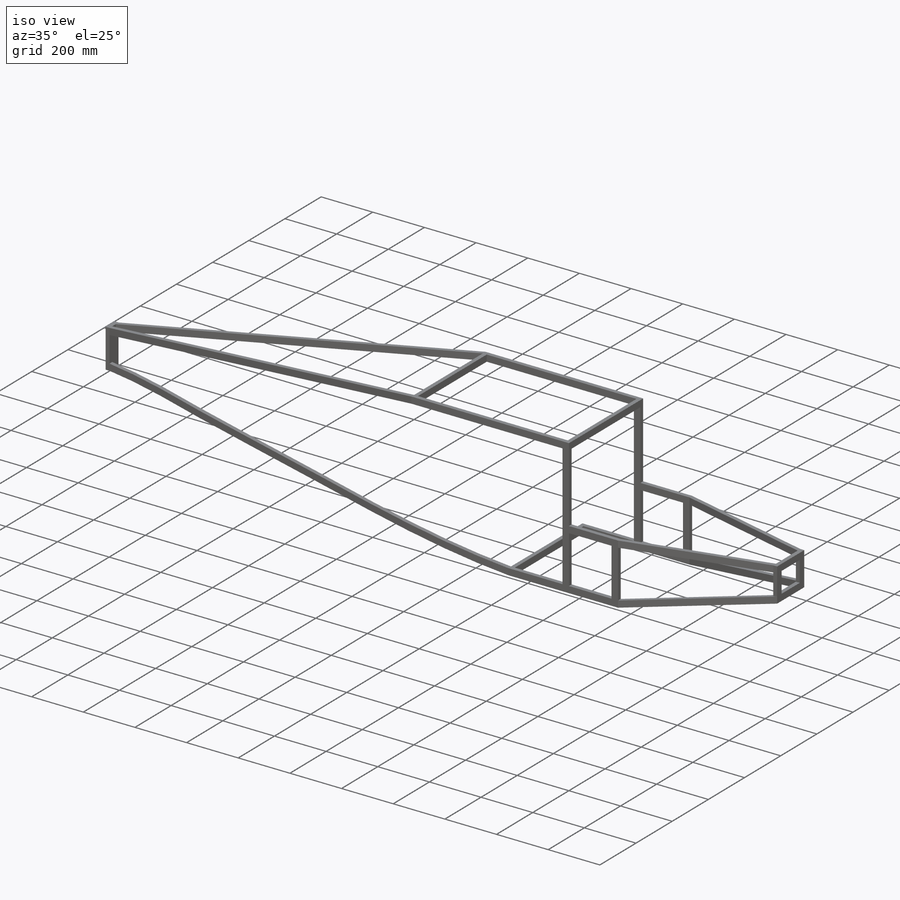
[diagram: iso view]
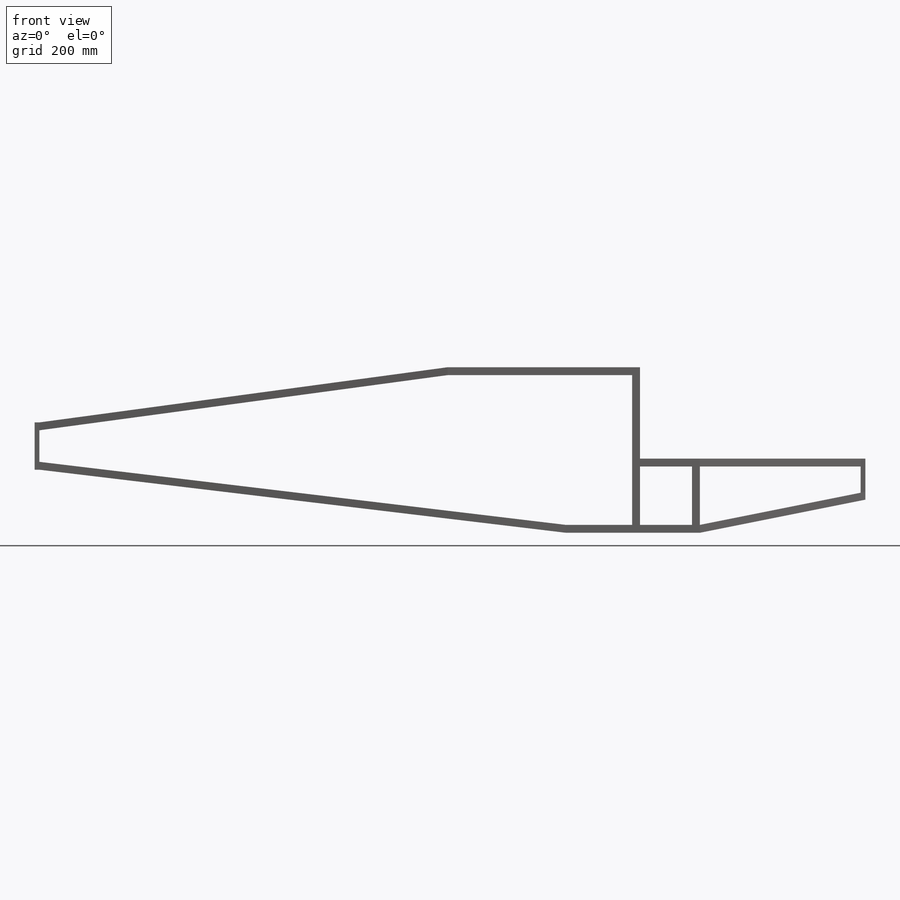
[diagram: front view]
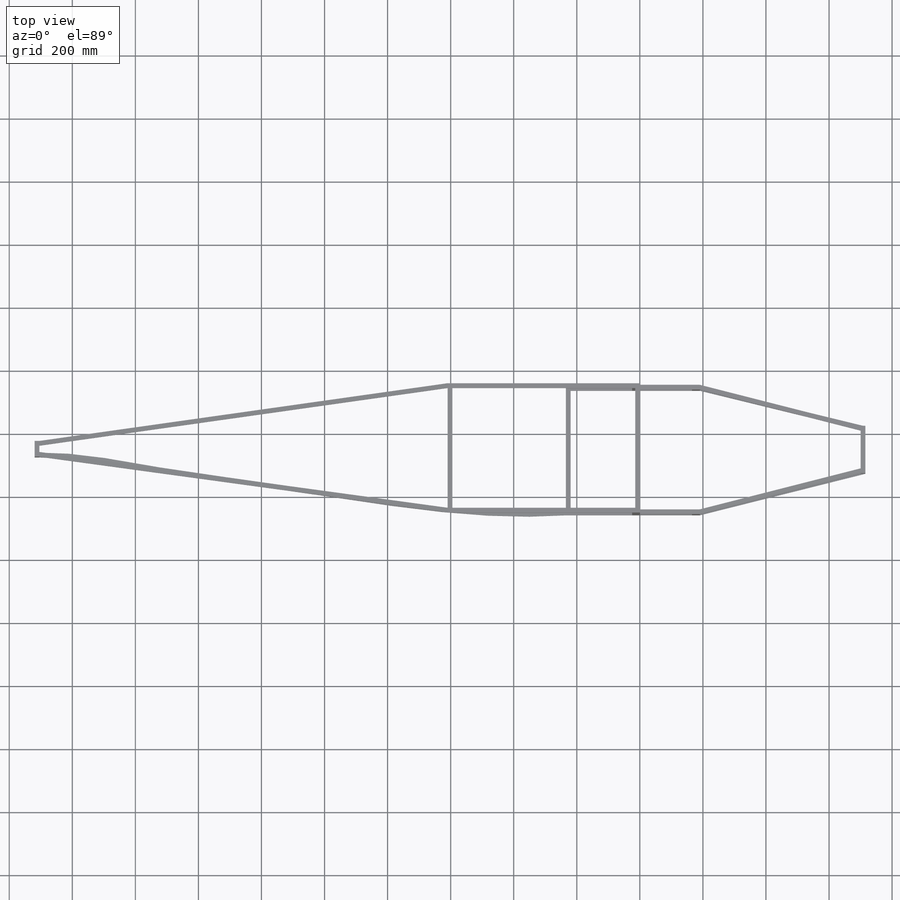
[diagram: top view]
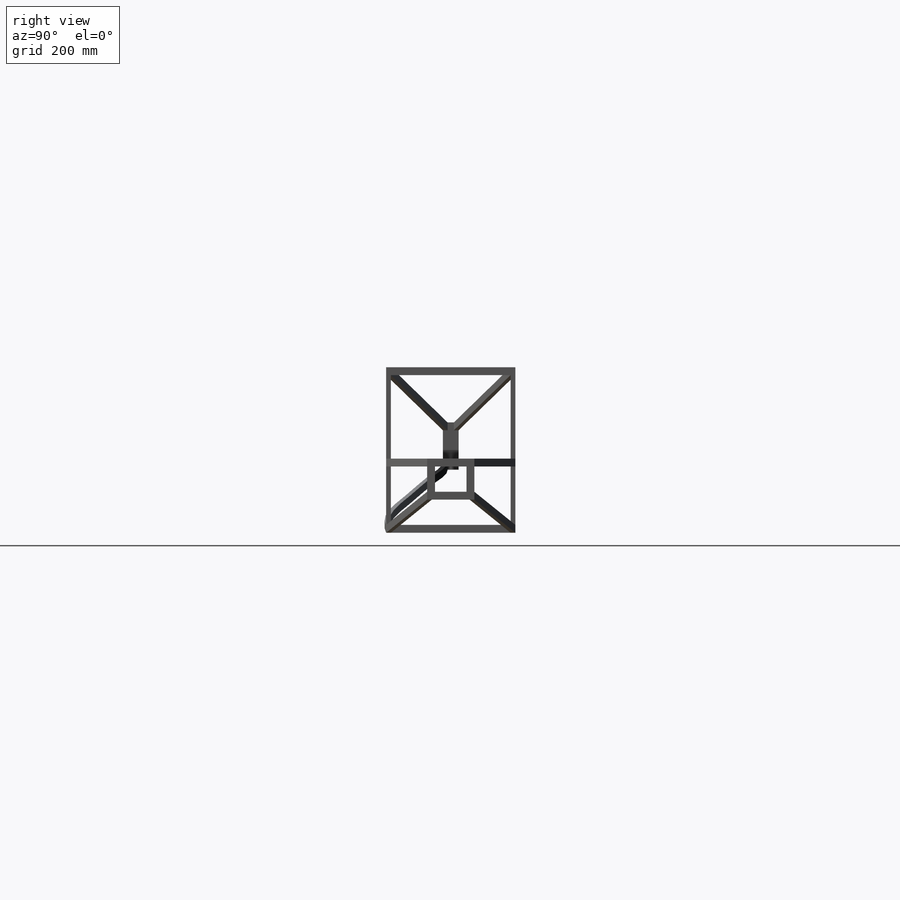
[diagram: right view]
SOLIDWORKS PART (.sldprt)
format: sldprt  version: not decoded by parser v0  size: 622,592 bytes
history: native  units: mm
features: sketch x24, extrude x15, material x1, plane x1 (+13 scaffold rows collapsed)
feature tree (54):
  scaffold x13  (default folders/planes/origin — collapsed)
  material  "Material <not specified>"
  sketch  "Sketch1"  dims[D1=610.0mm D2=410.0mm D3=15.0mm]
  extrude  "Boss-Extrude1"  Depth=25mm
  sketch  "Sketch2"  dims[D1=25.0mm D2=290.0mm D3=500.0mm D4=190.0mm D5=165.0mm D6=25.0mm D7=25.0mm D8=0.0mm]
  extrude  "Boss-Extrude2"  [1 undecoded]
  sketch  "Sketch4"
  extrude  "Boss-Extrude6"  [1 undecoded]
  sketch  "Sketch6"  dims[D1=715.0mm D2=75.0mm D3=75.0mm D4=15.0mm]
  extrude  "Boss-Extrude11"  Depth=25mm
  sketch  "Sketch8"  dims[D1=130.0mm]
  extrude  "Boss-Extrude12"  Depth=25mm
  sketch  "Sketch9"
  extrude  "Boss-Extrude13"  Depth=25mm
  sketch  "Sketch10"  dims[D1=25.0mm]
  extrude  "Boss-Extrude14"  [1 undecoded]
  sketch  "Sketch12"  dims[D1=15.0mm]
  sketch  "Sketch13"  dims[D1=25.0mm]
  extrude  "Boss-Extrude15"  [1 undecoded]
  sketch  "Sketch14"
  extrude  "Boss-Extrude16"  [1 undecoded]
  sketch  "Sketch15"  dims[D1=25.0mm]
  sketch  "Sketch16"  dims[D1=1310.0mm]
  sketch  "Sketch17"  dims[D1=200.0mm D2=15.0mm D3=150.0mm D4=1310.0mm]
  extrude  "Boss-Extrude17"  Depth=25mm
  sketch  "Sketch18"  dims[D1=15.0mm D2=15.0mm]
  sketch  "Sketch19"  dims[D1=25.0mm]
  extrude  "Loft3"  [1 undecoded]
  sketch  "Sketch20"  dims[D1=15.0mm D2=15.0mm]
  sketch  "Sketch21"  dims[D1=25.0mm D2=15.0mm D3=15.0mm D4=25.0mm D5=25.0mm]
  extrude  "Loft6"  [1 undecoded]
  sketch  "Sketch22"  dims[D1=15.0mm]
  sketch  "Sketch23"  dims[D1=15.0mm]
  extrude  "Loft7"  [1 undecoded]
  sketch  "Sketch24"  dims[D1=210.0mm D2=210.0mm D3=15.0mm]
  sketch  "Sketch25"  dims[D1=280.0mm D2=290.0mm D3=400.0mm D4=300.0mm D5=205.0mm D6=175.0mm D7=117.5mm D8=77.0mm]
  extrude  "Boss-Extrude18"  Depth=25mm
  sketch  "Sketch26"  dims[D1=15.0mm]
  sketch  "Sketch27"  dims[D1=15.0mm D2=25.0mm]
  plane  "Plane2"
  sketch  "Sketch29"
  extrude  "Loft13"  [1 undecoded]
decode coverage: 26 of 39 modeling features carry decoded parameters
note: 9 parameter values undecoded
summary: no parameter record found for 9 features
note: suppression state not decoded; provenance and decode notes live in map.json
